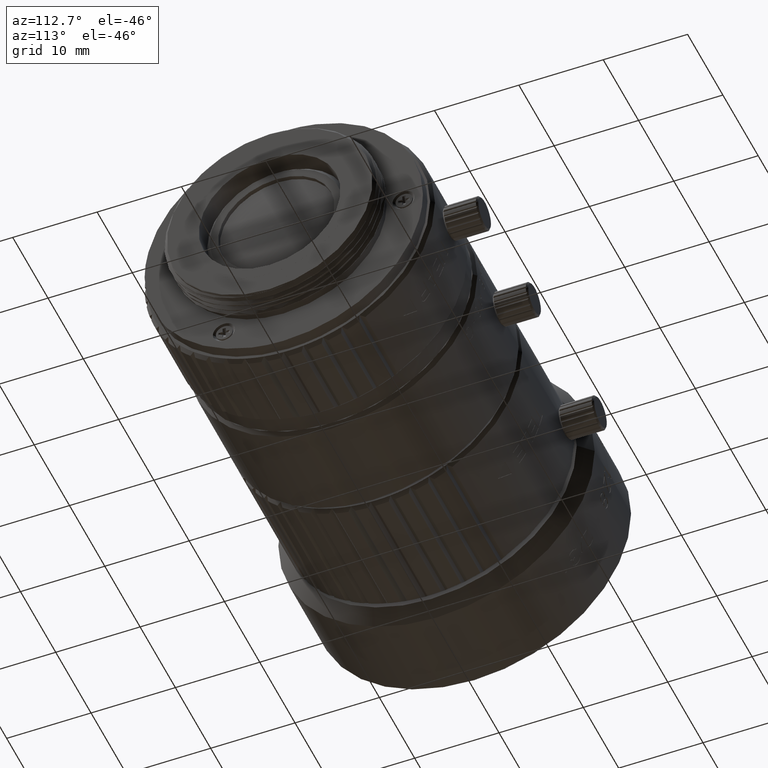
[diagram: clean part render]
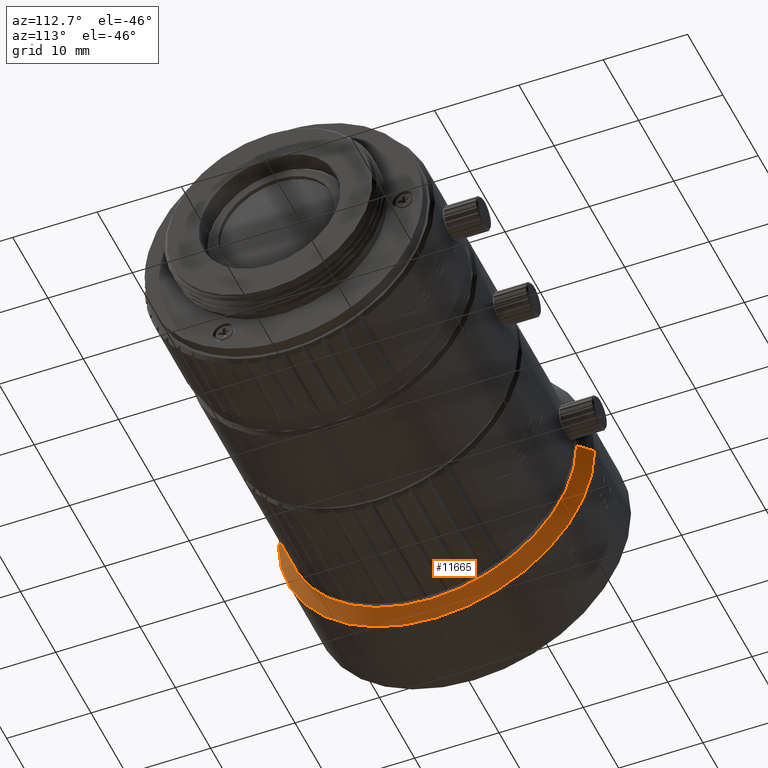
[diagram: same view with one face highlighted and labeled with its STEP entity id]
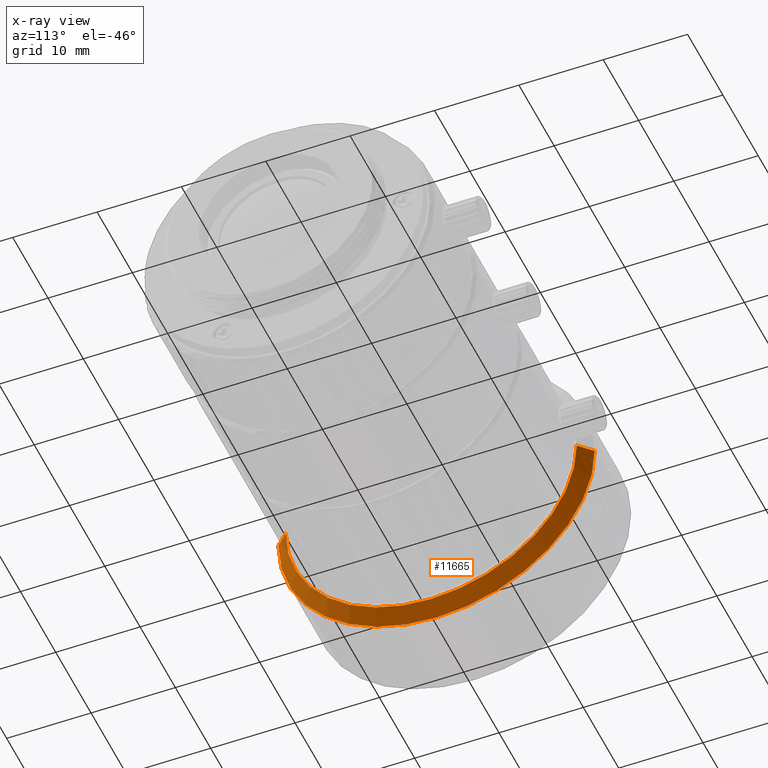
[diagram: x-ray of the same camera — body ghosted, the highlighted face saturated]
A machine part, auxiliary view. The second image highlights one B-rep face of the part: STEP entity #11665.
The next image is the same camera in x-ray: the body ghosted, the highlighted face saturated — about 1% of this face is hidden behind the body in this view.
In plain terms, the highlighted conical surface has half-angle 45 deg.
Its self-contained STEP definition (entity closure, byte-faithful):
#121 = DIRECTION ( 'NONE',  ( 0.000000000000000000, -1.000000000000000000, 0.000000000000000000 ) ) ;
#202 = CIRCLE ( 'NONE', #9106, 18.75000000000000000 ) ;
#1515 = VECTOR ( 'NONE', #67764, 1000.000000000000114 ) ;
#2196 = ORIENTED_EDGE ( 'NONE', *, *, #21252, .F. ) ;
#4485 = VECTOR ( 'NONE', #40352, 1000.000000000000114 ) ;
#5071 = ORIENTED_EDGE ( 'NONE', *, *, #24664, .T. ) ;
#5451 = ORIENTED_EDGE ( 'NONE', *, *, #29871, .F. ) ;
#6090 = CARTESIAN_POINT ( 'NONE',  ( 9.219997734787289900, -3.019806626980000436E-14, 1.734723475976804570E-14 ) ) ;
#7886 = EDGE_CURVE ( 'NONE', #40371, #64285, #202, .T. ) ;
#9106 = AXIS2_PLACEMENT_3D ( 'NONE', #49915, #13710, #45038 ) ;
#11665 = ADVANCED_FACE ( 'NONE', ( #21787 ), #22941, .T. ) ;
#13710 = DIRECTION ( 'NONE',  ( 1.000000000000000000, 0.000000000000000000, 0.000000000000000000 ) ) ;
#14839 = ORIENTED_EDGE ( 'NONE', *, *, #50062, .F. ) ;
#15974 = DIRECTION ( 'NONE',  ( 1.000000000000000000, 0.000000000000000000, 0.000000000000000000 ) ) ;
#17091 = CARTESIAN_POINT ( 'NONE',  ( 9.220000000000000639, -17.24999340139920179, 1.781631488733909908E-08 ) ) ;
#21252 = EDGE_CURVE ( 'NONE', #28707, #42672, #46237, .T. ) ;
#21787 = FACE_OUTER_BOUND ( 'NONE', #48205, .T. ) ;
#22941 = CONICAL_SURFACE ( 'NONE', #31823, 17.24999773463549957, 0.7853980320773266133 ) ;
#23514 = DIRECTION ( 'NONE',  ( 0.000000000000000000, 0.000000000000000000, 1.000000000000000000 ) ) ;
#24527 = CIRCLE ( 'NONE', #55665, 17.24999546942339990 ) ;
#24664 = EDGE_CURVE ( 'NONE', #28707, #40371, #47014, .T. ) ;
#26616 = CARTESIAN_POINT ( 'NONE',  ( 7.720000000000150742, 0.000000000000000000, 0.000000000000000000 ) ) ;
#27359 = DIRECTION ( 'NONE',  ( -1.000000000000000000, 0.000000000000000000, 0.000000000000000000 ) ) ;
#27964 = CARTESIAN_POINT ( 'NONE',  ( 7.720000000000150742, 0.000000000000000000, -18.75000000000000000 ) ) ;
#28707 = VERTEX_POINT ( 'NONE', #66935 ) ;
#29871 = EDGE_CURVE ( 'NONE', #42672, #49127, #24527, .T. ) ;
#31823 = AXIS2_PLACEMENT_3D ( 'NONE', #6090, #27359, #23514 ) ;
#35802 = CARTESIAN_POINT ( 'NONE',  ( 8.469997245502499439, -17.99999802694005169, 2.478787282088599862E-08 ) ) ;
#36436 = ORIENTED_EDGE ( 'NONE', *, *, #7886, .T. ) ;
#36743 = LINE ( 'NONE', #47529, #1515 ) ;
#40352 = DIRECTION ( 'NONE',  ( 0.7071068740438899436, 0.7071066883291928784, -9.737589249825320387E-10 ) ) ;
#40371 = VERTEX_POINT ( 'NONE', #27964 ) ;
#42672 = VERTEX_POINT ( 'NONE', #17091 ) ;
#45038 = DIRECTION ( 'NONE',  ( 0.000000000000000000, -1.000000000000000000, 0.000000000000000000 ) ) ;
#45883 = AXIS2_PLACEMENT_3D ( 'NONE', #26616, #59325, #121 ) ;
#46237 = LINE ( 'NONE', #35802, #4485 ) ;
#47014 = CIRCLE ( 'NONE', #45883, 18.75000000000000000 ) ;
#47529 = CARTESIAN_POINT ( 'NONE',  ( 8.469997245502499439, 17.99999802694000195, 1.874698273021615299E-12 ) ) ;
#48205 = EDGE_LOOP ( 'NONE', ( #5071, #36436, #14839, #5451, #2196 ) ) ;
#49127 = VERTEX_POINT ( 'NONE', #50998 ) ;
#49915 = CARTESIAN_POINT ( 'NONE',  ( 7.720000000000150742, 0.000000000000000000, 0.000000000000000000 ) ) ;
#50062 = EDGE_CURVE ( 'NONE', #49127, #64285, #36743, .T. ) ;
#50998 = CARTESIAN_POINT ( 'NONE',  ( 9.220000000000000639, 17.24999340139915205, 4.498213096193130231E-10 ) ) ;
#52862 = CARTESIAN_POINT ( 'NONE',  ( 9.220000000000000639, -3.019806626980000436E-14, 1.734723475976804570E-14 ) ) ;
#55665 = AXIS2_PLACEMENT_3D ( 'NONE', #52862, #15974, #68918 ) ;
#57408 = CARTESIAN_POINT ( 'NONE',  ( 7.719997913366840159, 18.74999791336425048, 1.030491394410567986E-09 ) ) ;
#59325 = DIRECTION ( 'NONE',  ( 1.000000000000000000, 0.000000000000000000, 0.000000000000000000 ) ) ;
#64285 = VERTEX_POINT ( 'NONE', #57408 ) ;
#66935 = CARTESIAN_POINT ( 'NONE',  ( 7.719997913365009623, -18.74999791336265176, 3.065872871008269935E-09 ) ) ;
#67764 = DIRECTION ( 'NONE',  ( -0.7071068740438899436, 0.7071066883291928784, 7.298217390733258055E-14 ) ) ;
#68918 = DIRECTION ( 'NONE',  ( 0.000000000000000000, 0.000000000000000000, -1.000000000000000000 ) ) ;